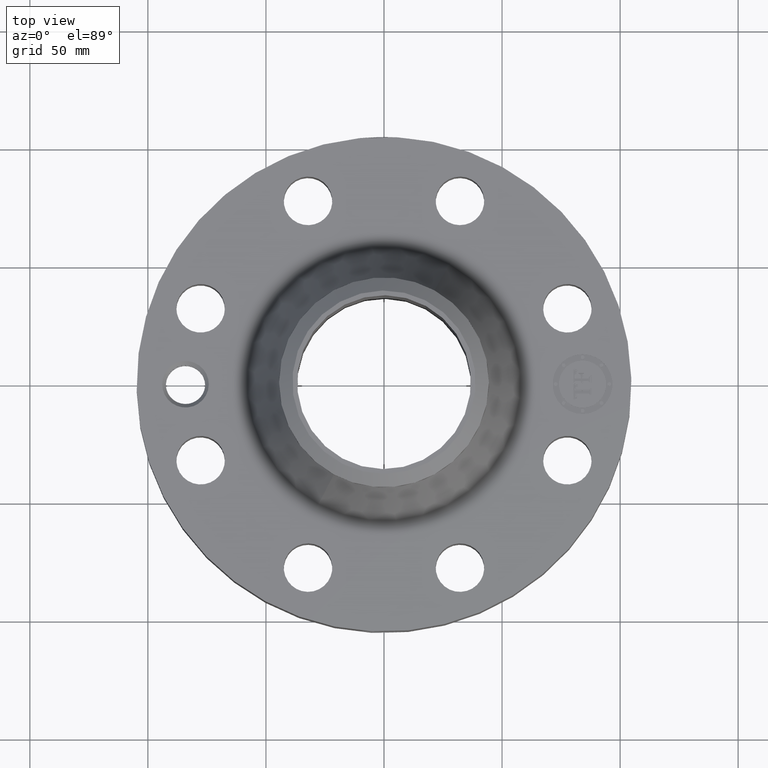
[diagram: clean part render]
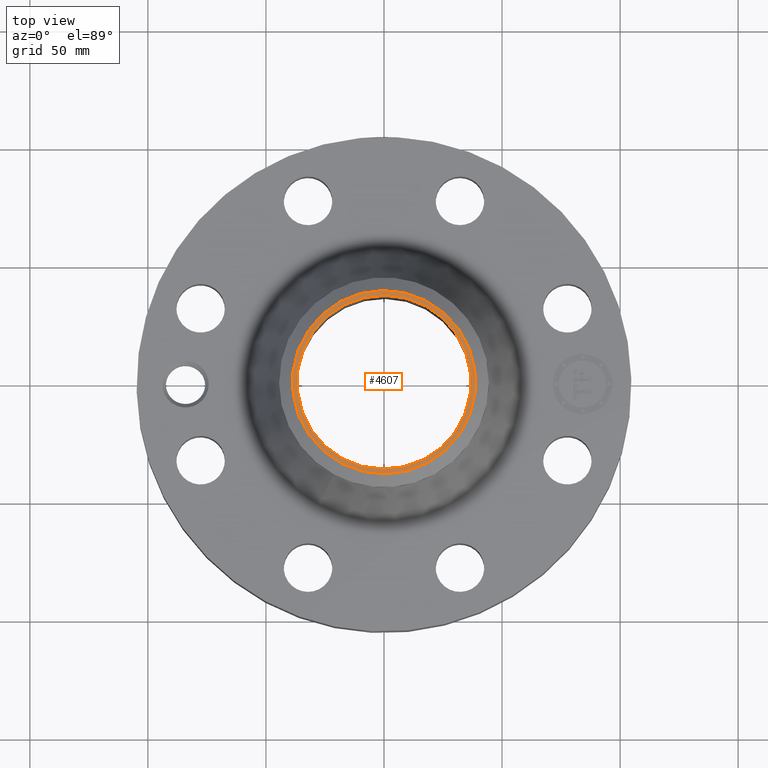
[diagram: same view with one face highlighted and labeled with its STEP entity id]
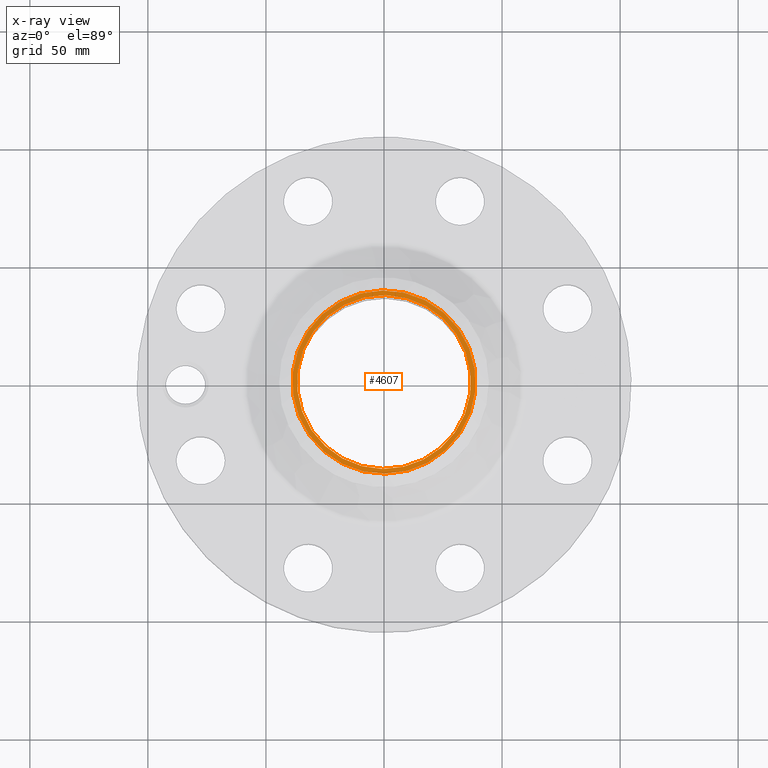
[diagram: x-ray of the same camera — body ghosted, the highlighted face saturated]
A machine part, top view. The second image highlights one B-rep face of the part: STEP entity #4607.
The next image is the same camera in x-ray: the body ghosted, the highlighted face saturated — about 0% of this face is hidden behind the body in this view.
In plain terms, the highlighted planar face has unit normal (0, 0, -1).
Its self-contained STEP definition (entity closure, byte-faithful):
#3292=AXIS2_PLACEMENT_3D('Circle Axis2P3D',#3290,#3291,$) ;
#3360=AXIS2_PLACEMENT_3D('Circle Axis2P3D',#3358,#3359,$) ;
#4583=AXIS2_PLACEMENT_3D('Plane Axis2P3D',#4580,#4581,#4582) ;
#4587=AXIS2_PLACEMENT_3D('Circle Axis2P3D',#4585,#4586,$) ;
#4596=AXIS2_PLACEMENT_3D('Circle Axis2P3D',#4594,#4595,$) ;
#3290=CARTESIAN_POINT('Axis2P3D Location',(0.,0.,3.56000000001)) ;
#3294=CARTESIAN_POINT('Vertex',(0.695167030979,1.27249471475,3.56000000001)) ;
#3296=CARTESIAN_POINT('Vertex',(-0.695167030979,-1.27249471475,3.56000000001)) ;
#3358=CARTESIAN_POINT('Axis2P3D Location',(0.,0.,3.56000000001)) ;
#4580=CARTESIAN_POINT('Axis2P3D Location',(0.,1.75000000001,3.56000000001)) ;
#4585=CARTESIAN_POINT('Axis2P3D Location',(0.,0.,3.56000000001)) ;
#4589=CARTESIAN_POINT('Vertex',(0.732917073389,-1.34159570387,3.56000000001)) ;
#4591=CARTESIAN_POINT('Vertex',(-0.732917073389,1.34159570387,3.56000000001)) ;
#4594=CARTESIAN_POINT('Axis2P3D Location',(0.,0.,3.56000000001)) ;
#3291=DIRECTION('Axis2P3D Direction',(0.,0.,-0.0393700787402)) ;
#3359=DIRECTION('Axis2P3D Direction',(0.,0.,-0.0393700787402)) ;
#4581=DIRECTION('Axis2P3D Direction',(0.,0.,-0.0393700787402)) ;
#4582=DIRECTION('Axis2P3D XDirection',(0.0393700787402,0.,0.)) ;
#4586=DIRECTION('Axis2P3D Direction',(0.,0.,-0.0393700787402)) ;
#4595=DIRECTION('Axis2P3D Direction',(0.,0.,-0.0393700787402)) ;
#4600=ORIENTED_EDGE('',*,*,#4593,.T.) ;
#4601=ORIENTED_EDGE('',*,*,#4598,.T.) ;
#4604=ORIENTED_EDGE('',*,*,#3362,.T.) ;
#4605=ORIENTED_EDGE('',*,*,#3298,.T.) ;
#4606=FACE_BOUND('',#4603,.T.) ;
#4607=ADVANCED_FACE('PartBody',(#4602,#4606),#4584,.F.) ;
#3293=CIRCLE('generated circle',#3292,1.45000000001) ;
#3361=CIRCLE('generated circle',#3360,1.45000000001) ;
#4588=CIRCLE('generated circle',#4587,1.52874015749) ;
#4597=CIRCLE('generated circle',#4596,1.52874015749) ;
#3298=EDGE_CURVE('',#3295,#3297,#3293,.T.) ;
#3362=EDGE_CURVE('',#3297,#3295,#3361,.T.) ;
#4593=EDGE_CURVE('',#4590,#4592,#4588,.F.) ;
#4598=EDGE_CURVE('',#4592,#4590,#4597,.F.) ;
#4599=EDGE_LOOP('',(#4600,#4601)) ;
#4603=EDGE_LOOP('',(#4604,#4605)) ;
#4602=FACE_OUTER_BOUND('',#4599,.T.) ;
#4584=PLANE('',#4583) ;
#3295=VERTEX_POINT('',#3294) ;
#3297=VERTEX_POINT('',#3296) ;
#4590=VERTEX_POINT('',#4589) ;
#4592=VERTEX_POINT('',#4591) ;